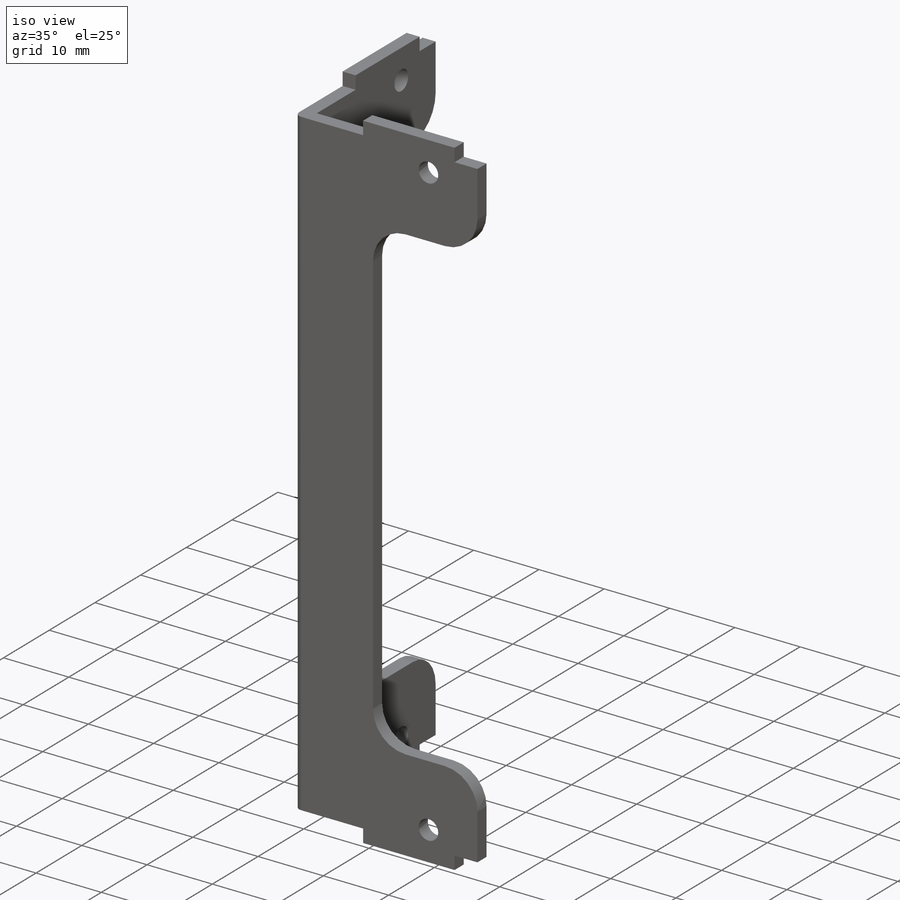
[diagram: iso view]
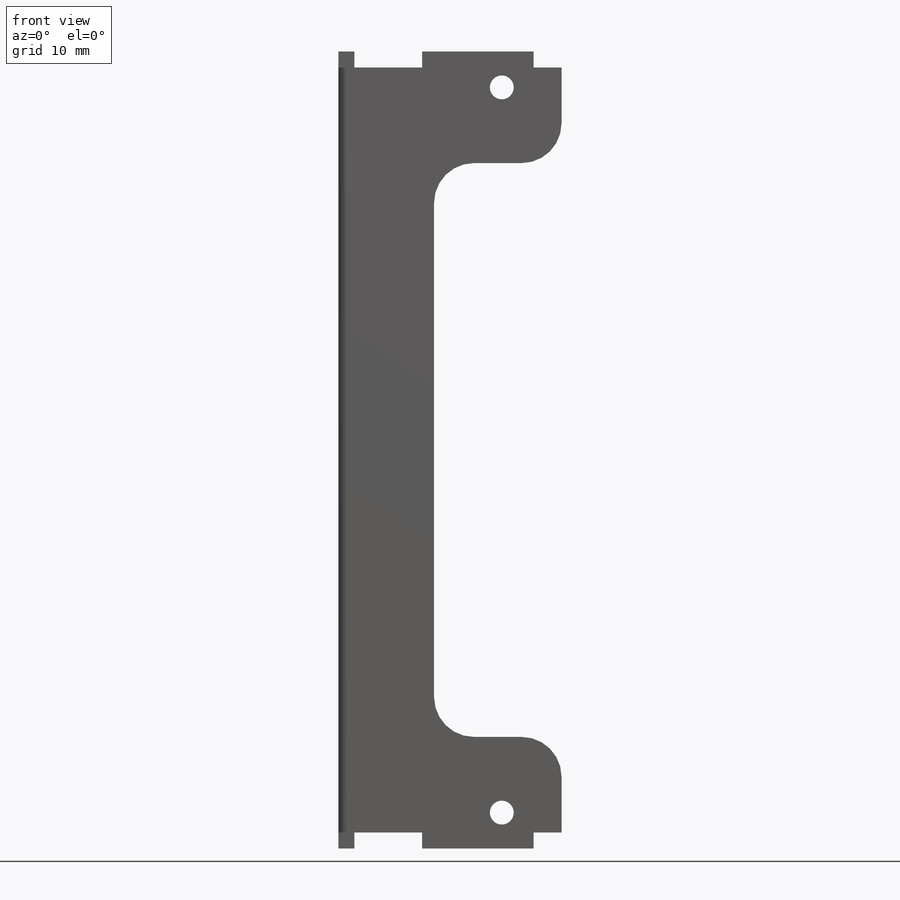
[diagram: front view]
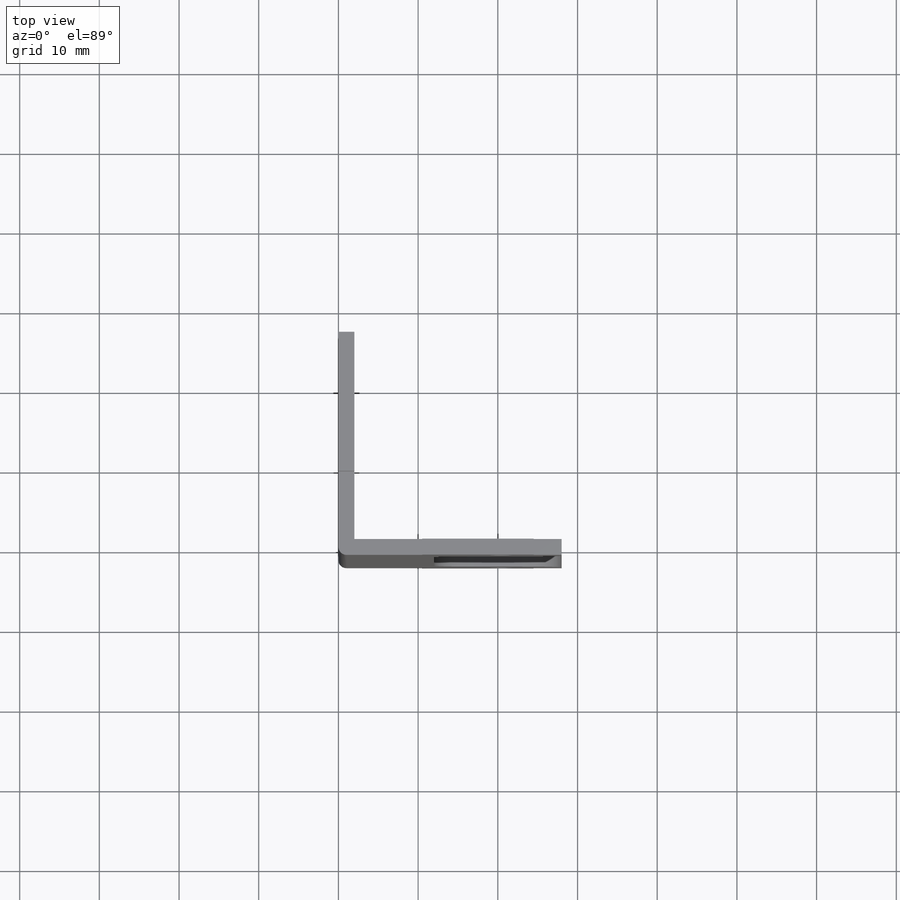
[diagram: top view]
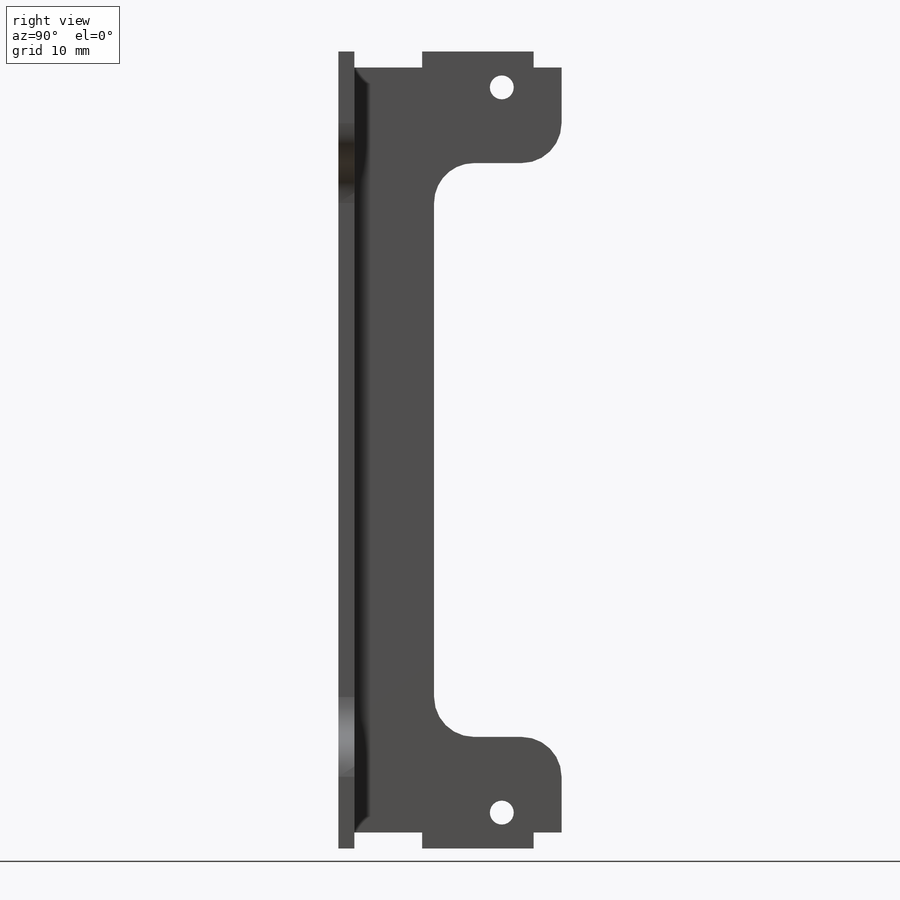
[diagram: right view]
SOLIDWORKS PART (.sldprt)
format: sldprt  version: not decoded by parser v0  size: 224,256 bytes
history: native  units: mm
features: sketch x2, extrude x2, material x1, fillet x1 (+12 scaffold rows collapsed)
feature tree (18):
  scaffold x12  (default folders/planes/origin — collapsed)
  material  "6061-T4 (SS)"
  sketch  "Sketch1"  dims[c1.D2=5.0mm c1.D12=3.0mm c1.D1=96.0mm c1.D3=12.0mm c1.D4=2.0mm c1.D5=14.0mm c1.D6=2.0mm c1.D7=28.0mm c1.D8=12.0mm c1.D9=10.5mm c1.D10=20.5mm c1.D11=2.5mm c2.D10=20.5mm c2.D13=2.5mm]
  extrude  "Boss-Extrude1"  Depth=2mm
  sketch  "Sketch2"  dims[c1.D7=5.0mm c1.D10=3.0mm c1.D1=10.0mm c1.D2=30.0mm c1.D3=10.5mm c1.D4=14.0mm c1.D5=28.0mm c1.D6=12.0mm c1.D8=~19.009902mm c2.D2=12.0mm c2.D8=20.5mm c2.D9=2.5mm c2.D11=2.5mm]
  extrude  "Boss-Extrude2"  Depth=2mm
  fillet  "Fillet1"  Radius=1mm
decode coverage: 5 of 5 modeling features carry decoded parameters
note: ~ marks probable driven/reference dimensions
note: suppression state not decoded; provenance and decode notes live in map.json
